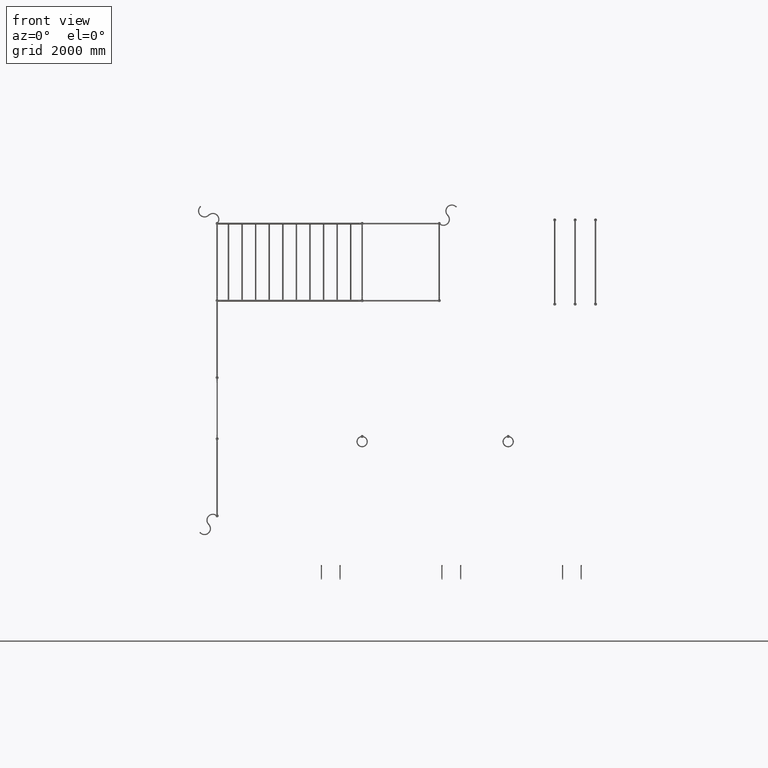
[diagram: clean part render]
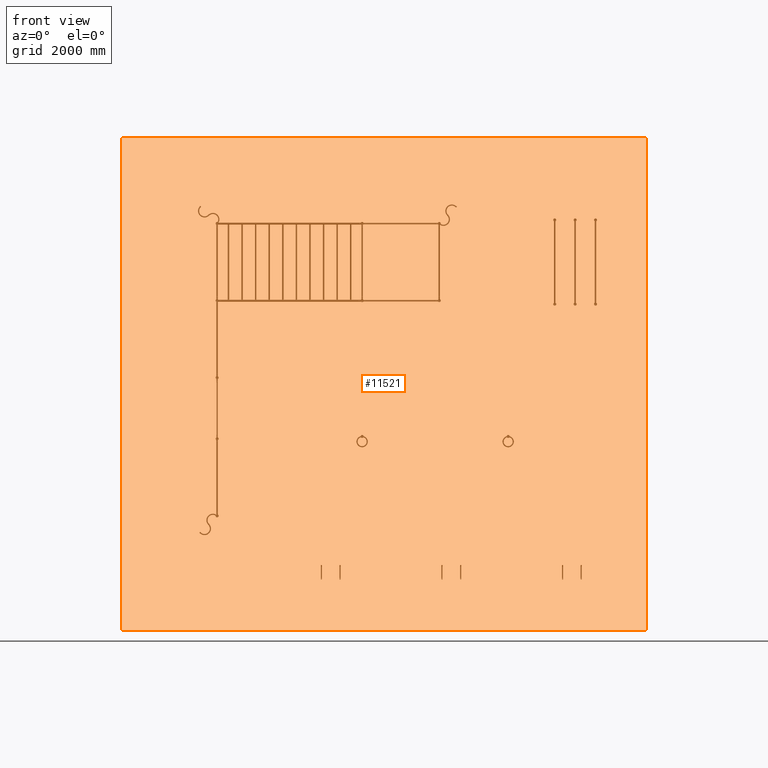
[diagram: same view with one face highlighted and labeled with its STEP entity id]
A machine part, front view. The second image highlights one B-rep face of the part: STEP entity #11521.
In plain terms, the highlighted planar face has unit normal (-0, -1, 0).
Its self-contained STEP definition (entity closure, byte-faithful):
#2116 = VERTEX_POINT ( 'NONE', #59086 ) ;
#2352 = ORIENTED_EDGE ( 'NONE', *, *, #6596, .T. ) ;
#4041 = LINE ( 'NONE', #75687, #31392 ) ;
#6596 = EDGE_CURVE ( 'NONE', #72918, #37805, #11976, .T. ) ;
#8161 = PLANE ( 'NONE',  #20765 ) ;
#8656 = CARTESIAN_POINT ( 'NONE',  ( 0.000000000000000000, 0.000000000000000000, 0.000000000000000000 ) ) ;
#11521 = ADVANCED_FACE ( 'NONE', ( #22545 ), #8161, .F. ) ;
#11552 = EDGE_CURVE ( 'NONE', #37805, #84130, #86512, .T. ) ;
#11976 = LINE ( 'NONE', #36105, #53286 ) ;
#18546 = LINE ( 'NONE', #49775, #64296 ) ;
#20765 = AXIS2_PLACEMENT_3D ( 'NONE', #8656, #94257, #77826 ) ;
#21410 = ORIENTED_EDGE ( 'NONE', *, *, #48168, .T. ) ;
#22545 = FACE_OUTER_BOUND ( 'NONE', #68041, .T. ) ;
#31392 = VECTOR ( 'NONE', #35799, 1000.000000000000000 ) ;
#35799 = DIRECTION ( 'NONE',  ( 0.000000000000000000, 0.000000000000000000, 1.000000000000000000 ) ) ;
#36105 = CARTESIAN_POINT ( 'NONE',  ( 2.738682182856677703E-15, 0.000000000000000000, -14489.00000000000000 ) ) ;
#37805 = VERTEX_POINT ( 'NONE', #53697 ) ;
#37908 = DIRECTION ( 'NONE',  ( -1.000000000000000000, 0.000000000000000000, -0.000000000000000000 ) ) ;
#48168 = EDGE_CURVE ( 'NONE', #2116, #72918, #18546, .T. ) ;
#49775 = CARTESIAN_POINT ( 'NONE',  ( -15454.00000000000000, 0.000000000000000000, -2.220446049250313081E-13 ) ) ;
#53286 = VECTOR ( 'NONE', #73996, 1000.000000000000000 ) ;
#53697 = CARTESIAN_POINT ( 'NONE',  ( 2.738682182856677703E-15, 0.000000000000000000, -14489.00000000000000 ) ) ;
#54763 = CARTESIAN_POINT ( 'NONE',  ( -15454.00000000000000, 0.000000000000000000, -14489.00000000000000 ) ) ;
#59086 = CARTESIAN_POINT ( 'NONE',  ( -15454.00000000000000, 0.000000000000000000, 0.000000000000000000 ) ) ;
#62590 = ORIENTED_EDGE ( 'NONE', *, *, #82606, .T. ) ;
#64296 = VECTOR ( 'NONE', #81552, 1000.000000000000000 ) ;
#68041 = EDGE_LOOP ( 'NONE', ( #96545, #62590, #21410, #2352 ) ) ;
#72918 = VERTEX_POINT ( 'NONE', #87641 ) ;
#73996 = DIRECTION ( 'NONE',  ( 1.890180262859188178E-19, 0.000000000000000000, -1.000000000000000000 ) ) ;
#75687 = CARTESIAN_POINT ( 'NONE',  ( -15454.00000000000000, 0.000000000000000000, -14489.00000000000000 ) ) ;
#76333 = VECTOR ( 'NONE', #37908, 1000.000000000000000 ) ;
#77826 = DIRECTION ( 'NONE',  ( 0.000000000000000000, -0.000000000000000000, -1.000000000000000000 ) ) ;
#81552 = DIRECTION ( 'NONE',  ( 1.000000000000000000, 0.000000000000000000, 1.436809919276765196E-17 ) ) ;
#82606 = EDGE_CURVE ( 'NONE', #84130, #2116, #4041, .T. ) ;
#84130 = VERTEX_POINT ( 'NONE', #87183 ) ;
#86512 = LINE ( 'NONE', #54763, #76333 ) ;
#87183 = CARTESIAN_POINT ( 'NONE',  ( -15454.00000000000000, 0.000000000000000000, -14489.00000000000000 ) ) ;
#87641 = CARTESIAN_POINT ( 'NONE',  ( 0.000000000000000000, 0.000000000000000000, 0.000000000000000000 ) ) ;
#94257 = DIRECTION ( 'NONE',  ( 0.000000000000000000, -1.000000000000000000, 0.000000000000000000 ) ) ;
#96545 = ORIENTED_EDGE ( 'NONE', *, *, #11552, .T. ) ;